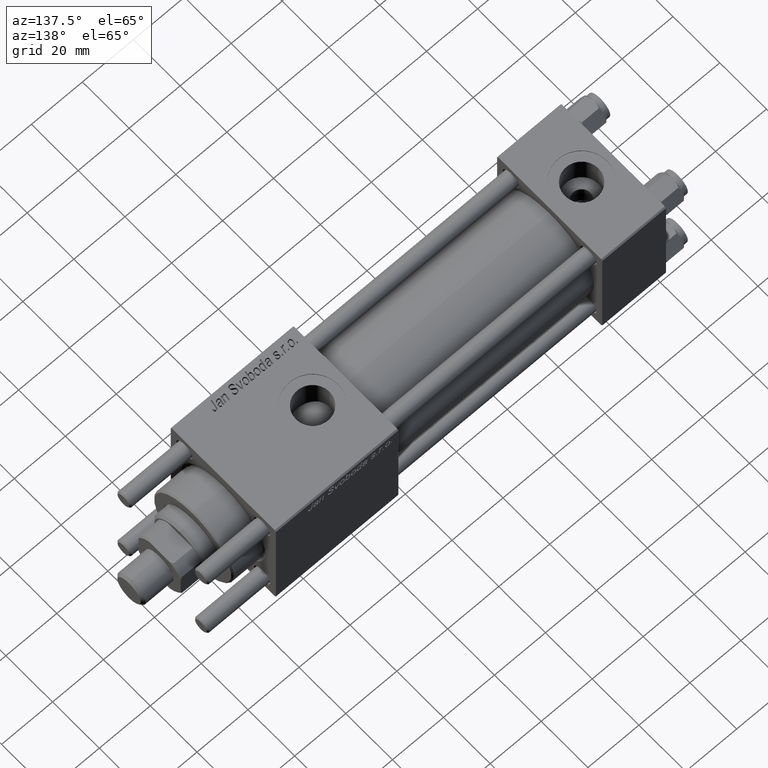
[diagram: clean part render]
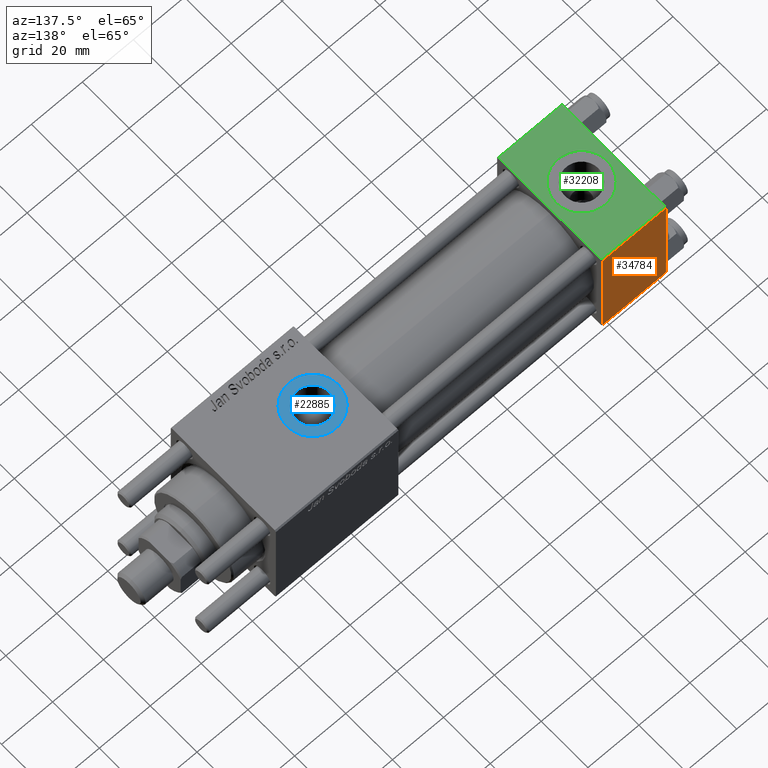
[diagram: same view with three faces highlighted in distinct colors, each labeled with its STEP entity id]
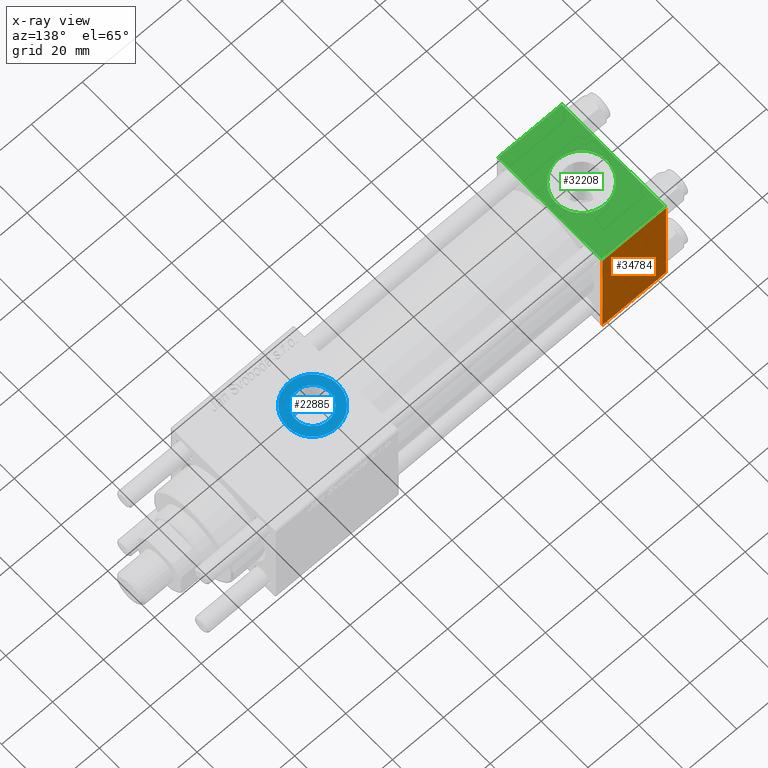
[diagram: x-ray of the same camera — body ghosted, the three highlighted faces saturated]
A machine part, auxiliary view with three faces highlighted in distinct colors.
The next image is the same camera in x-ray (body ghosted, the three faces saturated) — at least one of them is partly hidden behind the body in this view.
Their STEP definitions:

[orange] entity #34784 — the highlighted planar face has unit normal (0, 1, 0).
#1165 = CARTESIAN_POINT ( 'NONE',  ( 0.000000000000000000, 22.50000000000000000, 22.50000000000000355 ) ) ;
#1483 = CARTESIAN_POINT ( 'NONE',  ( 25.00000000000000000, 22.50000000000000000, -21.99999999999998224 ) ) ;
#1861 = PLANE ( 'NONE',  #54591 ) ;
#3111 = CARTESIAN_POINT ( 'NONE',  ( 0.000000000000000000, 22.50000000000000000, -21.99999999999996803 ) ) ;
#6094 = EDGE_CURVE ( 'NONE', #23852, #21284, #25433, .T. ) ;
#7015 = FACE_OUTER_BOUND ( 'NONE', #39640, .T. ) ;
#11211 = VERTEX_POINT ( 'NONE', #20823 ) ;
#12329 = VECTOR ( 'NONE', #43347, 1000.000000000000000 ) ;
#12920 = EDGE_CURVE ( 'NONE', #23852, #27033, #59355, .T. ) ;
#16088 = CARTESIAN_POINT ( 'NONE',  ( 25.00000000000000000, 22.50000000000000000, 21.99999999999999645 ) ) ;
#16719 = DIRECTION ( 'NONE',  ( 0.000000000000000000, -0.000000000000000000, 1.000000000000000000 ) ) ;
#17839 = ORIENTED_EDGE ( 'NONE', *, *, #31707, .T. ) ;
#19987 = DIRECTION ( 'NONE',  ( -1.000000000000000000, 0.000000000000000000, 0.000000000000000000 ) ) ;
#20372 = DIRECTION ( 'NONE',  ( -0.000000000000000000, 1.000000000000000000, 0.000000000000000000 ) ) ;
#20823 = CARTESIAN_POINT ( 'NONE',  ( 25.00000000000000000, 22.50000000000000000, -21.99999999999996803 ) ) ;
#21284 = VERTEX_POINT ( 'NONE', #3111 ) ;
#23852 = VERTEX_POINT ( 'NONE', #36796 ) ;
#24610 = CARTESIAN_POINT ( 'NONE',  ( 25.00000000000000000, 22.50000000000000000, 22.50000000000000355 ) ) ;
#25320 = CARTESIAN_POINT ( 'NONE',  ( 25.00000000000000000, 22.50000000000000000, 22.50000000000000355 ) ) ;
#25433 = LINE ( 'NONE', #1165, #12329 ) ;
#27033 = VERTEX_POINT ( 'NONE', #16088 ) ;
#31707 = EDGE_CURVE ( 'NONE', #27033, #11211, #47483, .T. ) ;
#32210 = ORIENTED_EDGE ( 'NONE', *, *, #45228, .T. ) ;
#34784 = ADVANCED_FACE ( 'NONE', ( #7015 ), #1861, .T. ) ;
#35571 = VECTOR ( 'NONE', #19987, 1000.000000000000000 ) ;
#36771 = VECTOR ( 'NONE', #36905, 1000.000000000000000 ) ;
#36796 = CARTESIAN_POINT ( 'NONE',  ( 0.000000000000000000, 22.50000000000000000, 21.99999999999999645 ) ) ;
#36905 = DIRECTION ( 'NONE',  ( 1.000000000000000000, 0.000000000000000000, 0.000000000000000000 ) ) ;
#39640 = EDGE_LOOP ( 'NONE', ( #17839, #32210, #46173, #56703 ) ) ;
#40968 = VECTOR ( 'NONE', #52910, 1000.000000000000000 ) ;
#43069 = LINE ( 'NONE', #1483, #35571 ) ;
#43347 = DIRECTION ( 'NONE',  ( 0.000000000000000000, 0.000000000000000000, -1.000000000000000000 ) ) ;
#45228 = EDGE_CURVE ( 'NONE', #11211, #21284, #43069, .T. ) ;
#46173 = ORIENTED_EDGE ( 'NONE', *, *, #6094, .F. ) ;
#47483 = LINE ( 'NONE', #25320, #40968 ) ;
#49658 = CARTESIAN_POINT ( 'NONE',  ( 25.00000000000000000, 22.50000000000000000, 21.99999999999999645 ) ) ;
#52910 = DIRECTION ( 'NONE',  ( 0.000000000000000000, 0.000000000000000000, -1.000000000000000000 ) ) ;
#54591 = AXIS2_PLACEMENT_3D ( 'NONE', #24610, #20372, #16719 ) ;
#56703 = ORIENTED_EDGE ( 'NONE', *, *, #12920, .T. ) ;
#59355 = LINE ( 'NONE', #49658, #36771 ) ;

[blue] entity #22885 — the highlighted planar face has unit normal (0, 0, 1).
#1158 = DIRECTION ( 'NONE',  ( -0.000000000000000000, -0.000000000000000000, -1.000000000000000000 ) ) ;
#1878 = DIRECTION ( 'NONE',  ( 1.000000000000000000, 0.000000000000000000, 0.000000000000000000 ) ) ;
#3175 = DIRECTION ( 'NONE',  ( 0.000000000000000000, 0.000000000000000000, 1.000000000000000000 ) ) ;
#5535 = CIRCLE ( 'NONE', #20099, 9.999999999999994671 ) ;
#7402 = AXIS2_PLACEMENT_3D ( 'NONE', #30796, #3175, #53249 ) ;
#8897 = CIRCLE ( 'NONE', #10802, 6.580000000000002736 ) ;
#10802 = AXIS2_PLACEMENT_3D ( 'NONE', #38188, #1158, #56659 ) ;
#11711 = AXIS2_PLACEMENT_3D ( 'NONE', #50589, #26642, #17827 ) ;
#13581 = FACE_OUTER_BOUND ( 'NONE', #50741, .T. ) ;
#14188 = ORIENTED_EDGE ( 'NONE', *, *, #47944, .T. ) ;
#17626 = ORIENTED_EDGE ( 'NONE', *, *, #55728, .T. ) ;
#17827 = DIRECTION ( 'NONE',  ( 1.000000000000000000, 0.000000000000000000, -0.000000000000000000 ) ) ;
#20099 = AXIS2_PLACEMENT_3D ( 'NONE', #29487, #28885, #1878 ) ;
#22885 = ADVANCED_FACE ( 'NONE', ( #46043, #13581 ), #59400, .T. ) ;
#24275 = CARTESIAN_POINT ( 'NONE',  ( 111.4200000000000017, -5.204170427930420494E-15, 22.29999999999999716 ) ) ;
#25260 = CARTESIAN_POINT ( 'NONE',  ( 118.0000000000000142, -5.204170427930420494E-15, 22.29999999999999716 ) ) ;
#26036 = EDGE_CURVE ( 'NONE', #33060, #56188, #8897, .T. ) ;
#26642 = DIRECTION ( 'NONE',  ( 0.000000000000000000, 0.000000000000000000, 1.000000000000000000 ) ) ;
#28885 = DIRECTION ( 'NONE',  ( 0.000000000000000000, 0.000000000000000000, 1.000000000000000000 ) ) ;
#29335 = VERTEX_POINT ( 'NONE', #39915 ) ;
#29487 = CARTESIAN_POINT ( 'NONE',  ( 118.0000000000000142, -5.204170427930420494E-15, 22.29999999999999716 ) ) ;
#29741 = EDGE_CURVE ( 'NONE', #56188, #33060, #52622, .T. ) ;
#30515 = ORIENTED_EDGE ( 'NONE', *, *, #26036, .T. ) ;
#30796 = CARTESIAN_POINT ( 'NONE',  ( 118.0000000000000142, -5.204170427930420494E-15, 22.29999999999999716 ) ) ;
#33060 = VERTEX_POINT ( 'NONE', #24275 ) ;
#34978 = DIRECTION ( 'NONE',  ( -0.000000000000000000, -0.000000000000000000, -1.000000000000000000 ) ) ;
#35344 = CARTESIAN_POINT ( 'NONE',  ( 108.0000000000000142, -3.979523628783067435E-15, 22.29999999999999716 ) ) ;
#36475 = CIRCLE ( 'NONE', #7402, 9.999999999999994671 ) ;
#38188 = CARTESIAN_POINT ( 'NONE',  ( 118.0000000000000142, -5.204170427930420494E-15, 22.29999999999999716 ) ) ;
#39915 = CARTESIAN_POINT ( 'NONE',  ( 128.0000000000000000, -5.204170427930420494E-15, 22.29999999999999716 ) ) ;
#40948 = VERTEX_POINT ( 'NONE', #35344 ) ;
#41982 = AXIS2_PLACEMENT_3D ( 'NONE', #25260, #34978, #48017 ) ;
#46043 = FACE_BOUND ( 'NONE', #52880, .T. ) ;
#47944 = EDGE_CURVE ( 'NONE', #29335, #40948, #36475, .T. ) ;
#48017 = DIRECTION ( 'NONE',  ( 1.000000000000000000, 0.000000000000000000, 0.000000000000000000 ) ) ;
#48532 = ORIENTED_EDGE ( 'NONE', *, *, #29741, .T. ) ;
#50589 = CARTESIAN_POINT ( 'NONE',  ( 118.0000000000000142, -5.204170427930420494E-15, 22.29999999999999716 ) ) ;
#50741 = EDGE_LOOP ( 'NONE', ( #14188, #17626 ) ) ;
#52622 = CIRCLE ( 'NONE', #41982, 6.580000000000002736 ) ;
#52880 = EDGE_LOOP ( 'NONE', ( #30515, #48532 ) ) ;
#53249 = DIRECTION ( 'NONE',  ( 1.000000000000000000, 0.000000000000000000, 0.000000000000000000 ) ) ;
#55728 = EDGE_CURVE ( 'NONE', #40948, #29335, #5535, .T. ) ;
#55740 = CARTESIAN_POINT ( 'NONE',  ( 124.5800000000000125, -4.398352834091461452E-15, 22.29999999999999716 ) ) ;
#56188 = VERTEX_POINT ( 'NONE', #55740 ) ;
#56659 = DIRECTION ( 'NONE',  ( 1.000000000000000000, 0.000000000000000000, 0.000000000000000000 ) ) ;
#59400 = PLANE ( 'NONE',  #11711 ) ;

[green] entity #32208 — the highlighted planar face has unit normal (0, 0, -1).
#1459 = EDGE_CURVE ( 'NONE', #59692, #56219, #56705, .T. ) ;
#1668 = CARTESIAN_POINT ( 'NONE',  ( 25.00000000000000000, -21.99999999999997868, 22.50000000000000000 ) ) ;
#1856 = CARTESIAN_POINT ( 'NONE',  ( 0.000000000000000000, 22.50000000000000000, 22.50000000000000355 ) ) ;
#2403 = DIRECTION ( 'NONE',  ( 0.000000000000000000, 1.000000000000000000, 7.709882115452476934E-17 ) ) ;
#3458 = EDGE_CURVE ( 'NONE', #24069, #9121, #58169, .T. ) ;
#6119 = VERTEX_POINT ( 'NONE', #16015 ) ;
#6390 = CARTESIAN_POINT ( 'NONE',  ( 0.000000000000000000, 21.99999999999999289, 22.50000000000000355 ) ) ;
#7864 = PLANE ( 'NONE',  #45794 ) ;
#8010 = DIRECTION ( 'NONE',  ( 0.000000000000000000, -1.000000000000000000, -7.709882115452476934E-17 ) ) ;
#8966 = ORIENTED_EDGE ( 'NONE', *, *, #50438, .T. ) ;
#9121 = VERTEX_POINT ( 'NONE', #1668 ) ;
#9360 = AXIS2_PLACEMENT_3D ( 'NONE', #58939, #16792, #17085 ) ;
#9394 = CARTESIAN_POINT ( 'NONE',  ( 0.000000000000000000, -21.99999999999997868, 22.50000000000000000 ) ) ;
#10536 = CARTESIAN_POINT ( 'NONE',  ( 25.00000000000000000, 22.50000000000000000, 22.50000000000000355 ) ) ;
#11399 = ORIENTED_EDGE ( 'NONE', *, *, #23859, .T. ) ;
#14187 = CARTESIAN_POINT ( 'NONE',  ( 22.50000000000000000, -1.734723475976807094E-15, 22.50000000000000000 ) ) ;
#14916 = DIRECTION ( 'NONE',  ( -1.000000000000000000, 0.000000000000000000, 0.000000000000000000 ) ) ;
#15348 = ORIENTED_EDGE ( 'NONE', *, *, #54167, .F. ) ;
#16015 = CARTESIAN_POINT ( 'NONE',  ( 25.00000000000000000, 21.99999999999999289, 22.50000000000000355 ) ) ;
#16792 = DIRECTION ( 'NONE',  ( 0.000000000000000000, 0.000000000000000000, 1.000000000000000000 ) ) ;
#17085 = DIRECTION ( 'NONE',  ( 1.000000000000000000, 0.000000000000000000, 0.000000000000000000 ) ) ;
#18425 = VERTEX_POINT ( 'NONE', #6390 ) ;
#21168 = DIRECTION ( 'NONE',  ( 1.000000000000000000, 0.000000000000000000, 0.000000000000000000 ) ) ;
#21472 = CARTESIAN_POINT ( 'NONE',  ( 25.00000000000000000, -21.99999999999999289, 22.50000000000000000 ) ) ;
#21522 = DIRECTION ( 'NONE',  ( 0.000000000000000000, 7.709882115452476934E-17, -1.000000000000000000 ) ) ;
#23112 = ORIENTED_EDGE ( 'NONE', *, *, #3458, .T. ) ;
#23859 = EDGE_CURVE ( 'NONE', #18425, #24069, #44034, .T. ) ;
#24069 = VERTEX_POINT ( 'NONE', #9394 ) ;
#25220 = DIRECTION ( 'NONE',  ( 0.000000000000000000, -1.000000000000000000, -7.709882115452476934E-17 ) ) ;
#25266 = CARTESIAN_POINT ( 'NONE',  ( 12.50000000000000000, -1.734723475976807094E-15, 22.50000000000000000 ) ) ;
#25375 = EDGE_LOOP ( 'NONE', ( #11399, #23112, #42010, #8966 ) ) ;
#25393 = LINE ( 'NONE', #10536, #46865 ) ;
#27790 = CARTESIAN_POINT ( 'NONE',  ( 2.500000000000003997, -5.100766768294543310E-16, 22.50000000000000000 ) ) ;
#32208 = ADVANCED_FACE ( 'NONE', ( #40654, #58221 ), #7864, .F. ) ;
#33606 = CIRCLE ( 'NONE', #9360, 9.999999999999998224 ) ;
#34984 = DIRECTION ( 'NONE',  ( 0.000000000000000000, 0.000000000000000000, 1.000000000000000000 ) ) ;
#35184 = CARTESIAN_POINT ( 'NONE',  ( 25.00000000000000000, 22.50000000000000000, 22.50000000000000355 ) ) ;
#36103 = EDGE_CURVE ( 'NONE', #6119, #9121, #25393, .T. ) ;
#37475 = EDGE_LOOP ( 'NONE', ( #15348, #57441 ) ) ;
#37999 = LINE ( 'NONE', #56473, #55885 ) ;
#40654 = FACE_BOUND ( 'NONE', #37475, .T. ) ;
#40672 = DIRECTION ( 'NONE',  ( 1.000000000000000000, 0.000000000000000000, 0.000000000000000000 ) ) ;
#42010 = ORIENTED_EDGE ( 'NONE', *, *, #36103, .F. ) ;
#44034 = LINE ( 'NONE', #1856, #54358 ) ;
#45794 = AXIS2_PLACEMENT_3D ( 'NONE', #35184, #21522, #2403 ) ;
#46865 = VECTOR ( 'NONE', #8010, 1000.000000000000000 ) ;
#50438 = EDGE_CURVE ( 'NONE', #6119, #18425, #37999, .T. ) ;
#54167 = EDGE_CURVE ( 'NONE', #56219, #59692, #33606, .T. ) ;
#54358 = VECTOR ( 'NONE', #25220, 1000.000000000000000 ) ;
#55712 = AXIS2_PLACEMENT_3D ( 'NONE', #25266, #34984, #40672 ) ;
#55885 = VECTOR ( 'NONE', #14916, 1000.000000000000000 ) ;
#56219 = VERTEX_POINT ( 'NONE', #14187 ) ;
#56473 = CARTESIAN_POINT ( 'NONE',  ( 0.000000000000000000, 21.99999999999999289, 22.50000000000000355 ) ) ;
#56705 = CIRCLE ( 'NONE', #55712, 9.999999999999998224 ) ;
#56793 = VECTOR ( 'NONE', #21168, 1000.000000000000000 ) ;
#57441 = ORIENTED_EDGE ( 'NONE', *, *, #1459, .F. ) ;
#58169 = LINE ( 'NONE', #21472, #56793 ) ;
#58221 = FACE_OUTER_BOUND ( 'NONE', #25375, .T. ) ;
#58939 = CARTESIAN_POINT ( 'NONE',  ( 12.50000000000000000, -1.734723475976807094E-15, 22.50000000000000000 ) ) ;
#59692 = VERTEX_POINT ( 'NONE', #27790 ) ;